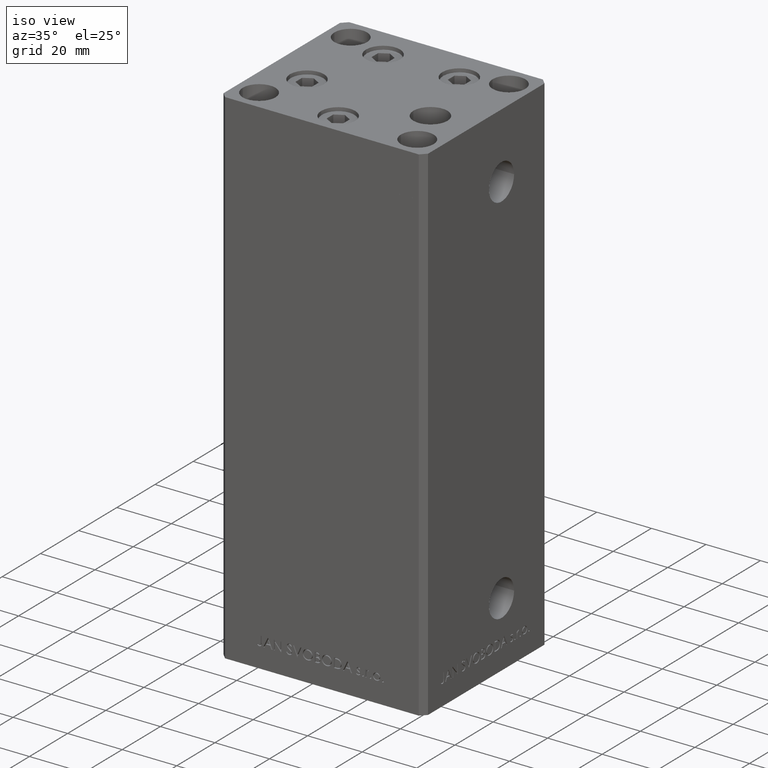
[diagram: clean part render]
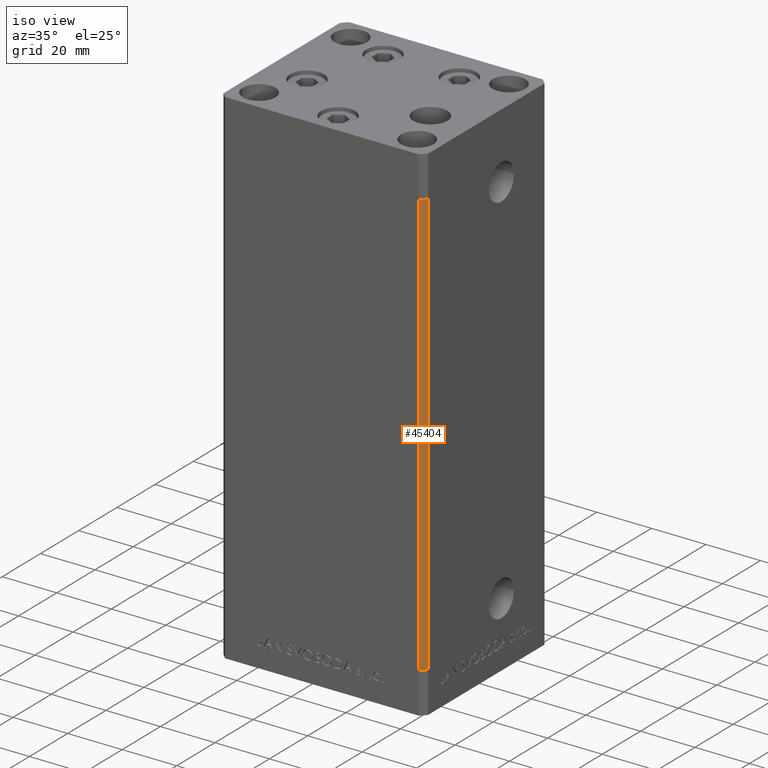
[diagram: same view with one face highlighted and labeled with its STEP entity id]
A machine part, iso view. The second image highlights one B-rep face of the part: STEP entity #45404.
In plain terms, the highlighted planar face has unit normal (0.7071, -0.7071, 0).
Its self-contained STEP definition (entity closure, byte-faithful):
#139 = CARTESIAN_POINT ( 'NONE',  ( 37.49999999999999289, -30.50000000000000000, 156.0000000000000000 ) ) ;
#901 = EDGE_CURVE ( 'NONE', #35261, #15113, #47112, .T. ) ;
#2206 = AXIS2_PLACEMENT_3D ( 'NONE', #139, #7648, #31289 ) ;
#3101 = EDGE_CURVE ( 'NONE', #47516, #41772, #44305, .T. ) ;
#3480 = CARTESIAN_POINT ( 'NONE',  ( 35.49999999999999289, -32.50000000000000000, 0.000000000000000000 ) ) ;
#4689 = CARTESIAN_POINT ( 'NONE',  ( 37.49999999999999289, -30.50000000000000000, 0.000000000000000000 ) ) ;
#5723 = CARTESIAN_POINT ( 'NONE',  ( 37.49999999999999289, -30.50000000000000000, 0.000000000000000000 ) ) ;
#5970 = EDGE_CURVE ( 'NONE', #41772, #15113, #39302, .T. ) ;
#6106 = VECTOR ( 'NONE', #24223, 1000.000000000000114 ) ;
#7648 = DIRECTION ( 'NONE',  ( 0.7071067811865475727, -0.7071067811865475727, 0.000000000000000000 ) ) ;
#9017 = CARTESIAN_POINT ( 'NONE',  ( 37.49999999999999289, -30.50000000000000000, 156.0000000000000000 ) ) ;
#12174 = ORIENTED_EDGE ( 'NONE', *, *, #3101, .F. ) ;
#12702 = EDGE_CURVE ( 'NONE', #47516, #35261, #34924, .T. ) ;
#13240 = CARTESIAN_POINT ( 'NONE',  ( 35.49999999999999289, -32.50000000000000000, 156.0000000000000000 ) ) ;
#15113 = VERTEX_POINT ( 'NONE', #3480 ) ;
#16565 = CARTESIAN_POINT ( 'NONE',  ( 37.49999999999999289, -30.50000000000000000, 156.0000000000000000 ) ) ;
#22363 = FACE_OUTER_BOUND ( 'NONE', #44024, .T. ) ;
#24223 = DIRECTION ( 'NONE',  ( -0.7071067811865474617, -0.7071067811865474617, 0.000000000000000000 ) ) ;
#28179 = VECTOR ( 'NONE', #47039, 1000.000000000000114 ) ;
#31289 = DIRECTION ( 'NONE',  ( 0.7071067811865474617, 0.7071067811865474617, 0.000000000000000000 ) ) ;
#31838 = ORIENTED_EDGE ( 'NONE', *, *, #12702, .T. ) ;
#34924 = LINE ( 'NONE', #9017, #6106 ) ;
#35261 = VERTEX_POINT ( 'NONE', #48974 ) ;
#35651 = DIRECTION ( 'NONE',  ( -0.000000000000000000, -0.000000000000000000, -1.000000000000000000 ) ) ;
#38264 = PLANE ( 'NONE',  #2206 ) ;
#39239 = VECTOR ( 'NONE', #35651, 1000.000000000000000 ) ;
#39302 = LINE ( 'NONE', #4689, #28179 ) ;
#40327 = DIRECTION ( 'NONE',  ( -0.000000000000000000, -0.000000000000000000, -1.000000000000000000 ) ) ;
#40584 = ORIENTED_EDGE ( 'NONE', *, *, #5970, .F. ) ;
#40915 = VECTOR ( 'NONE', #40327, 1000.000000000000000 ) ;
#41772 = VERTEX_POINT ( 'NONE', #5723 ) ;
#44024 = EDGE_LOOP ( 'NONE', ( #40584, #12174, #31838, #45382 ) ) ;
#44305 = LINE ( 'NONE', #48283, #40915 ) ;
#45382 = ORIENTED_EDGE ( 'NONE', *, *, #901, .T. ) ;
#45404 = ADVANCED_FACE ( 'NONE', ( #22363 ), #38264, .T. ) ;
#47039 = DIRECTION ( 'NONE',  ( -0.7071067811865474617, -0.7071067811865474617, 0.000000000000000000 ) ) ;
#47112 = LINE ( 'NONE', #13240, #39239 ) ;
#47516 = VERTEX_POINT ( 'NONE', #16565 ) ;
#48283 = CARTESIAN_POINT ( 'NONE',  ( 37.49999999999999289, -30.50000000000000000, 156.0000000000000000 ) ) ;
#48974 = CARTESIAN_POINT ( 'NONE',  ( 35.49999999999999289, -32.50000000000000000, 156.0000000000000000 ) ) ;